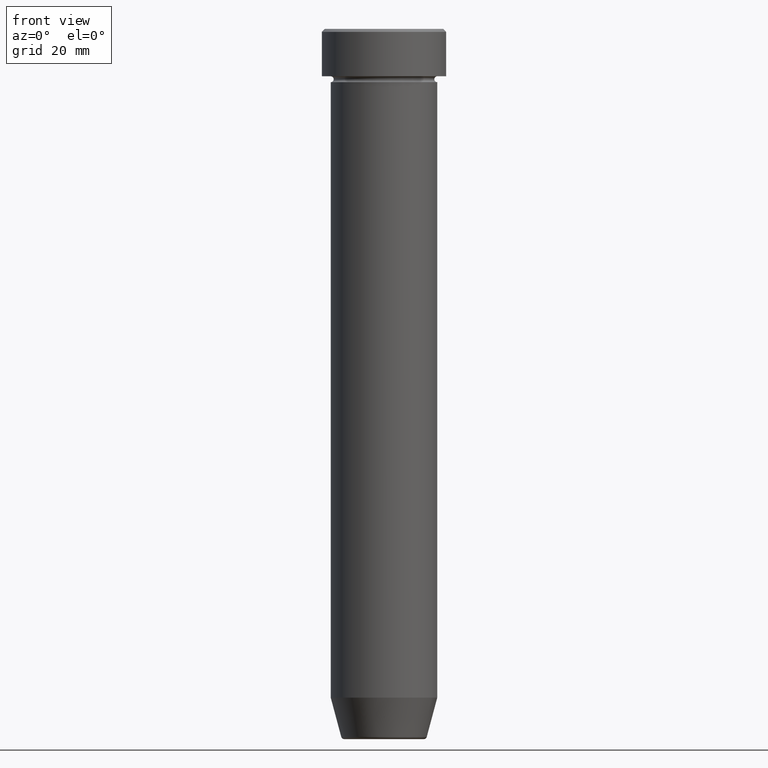
[diagram: clean part render]
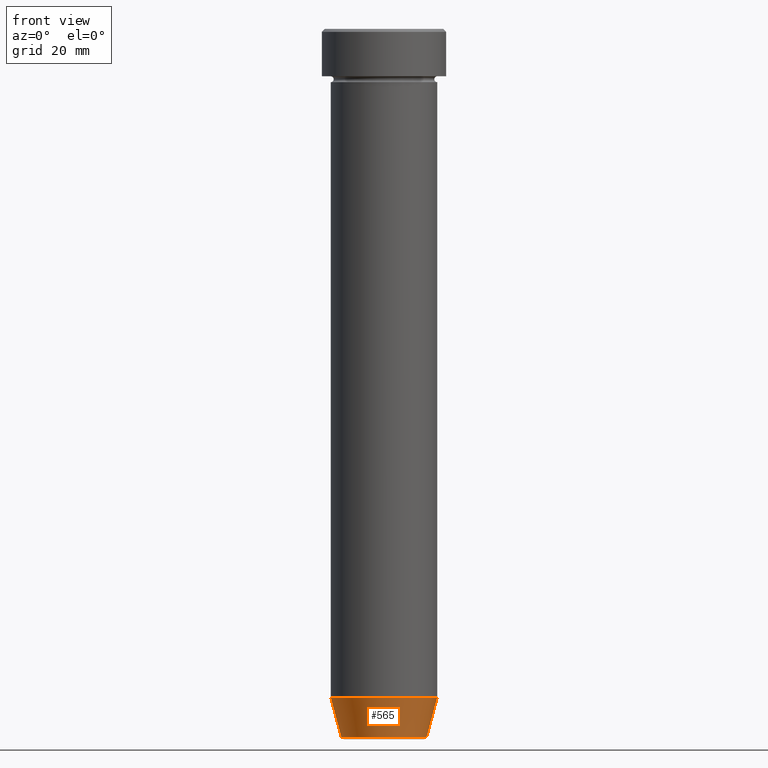
[diagram: same view with one face highlighted and labeled with its STEP entity id]
A machine part, front view. The second image highlights one B-rep face of the part: STEP entity #565.
In plain terms, the highlighted conical surface has half-angle 15 deg.
Its self-contained STEP definition (entity closure, byte-faithful):
#11 = EDGE_CURVE ( 'NONE', #596, #252, #169, .T. ) ;
#34 = FACE_OUTER_BOUND ( 'NONE', #537, .T. ) ;
#52 = DIRECTION ( 'NONE',  ( 0.2588190451025210725, 0.000000000000000000, 0.9659258262890680902 ) ) ;
#85 = CARTESIAN_POINT ( 'NONE',  ( -7.223655072137189492, 9.934123627281763137E-16, -119.6294095225512706 ) ) ;
#90 = VECTOR ( 'NONE', #52, 1000.000000000000114 ) ;
#97 = CARTESIAN_POINT ( 'NONE',  ( 0.000000000000000000, 0.000000000000000000, -112.9999999999999858 ) ) ;
#157 = VECTOR ( 'NONE', #250, 1000.000000000000114 ) ;
#163 = DIRECTION ( 'NONE',  ( -1.000000000000000000, 0.000000000000000000, 0.000000000000000000 ) ) ;
#168 = CARTESIAN_POINT ( 'NONE',  ( 0.000000000000000000, 0.000000000000000000, -119.6294095225512706 ) ) ;
#169 = LINE ( 'NONE', #579, #157 ) ;
#185 = LINE ( 'NONE', #475, #90 ) ;
#187 = ORIENTED_EDGE ( 'NONE', *, *, #339, .F. ) ;
#221 = ORIENTED_EDGE ( 'NONE', *, *, #458, .T. ) ;
#241 = ORIENTED_EDGE ( 'NONE', *, *, #305, .T. ) ;
#250 = DIRECTION ( 'NONE',  ( -0.2588190451025210725, 3.169619151431769255E-17, 0.9659258262890680902 ) ) ;
#252 = VERTEX_POINT ( 'NONE', #417 ) ;
#256 = AXIS2_PLACEMENT_3D ( 'NONE', #168, #390, #163 ) ;
#257 = AXIS2_PLACEMENT_3D ( 'NONE', #457, #554, #266 ) ;
#266 = DIRECTION ( 'NONE',  ( 1.000000000000000000, 0.000000000000000000, 0.000000000000000000 ) ) ;
#305 = EDGE_CURVE ( 'NONE', #310, #562, #185, .T. ) ;
#310 = VERTEX_POINT ( 'NONE', #328 ) ;
#327 = CONICAL_SURFACE ( 'NONE', #257, 7.124355652982136355, 0.2617993877991497964 ) ;
#328 = CARTESIAN_POINT ( 'NONE',  ( 7.223655072137189492, 0.000000000000000000, -119.6294095225512706 ) ) ;
#339 = EDGE_CURVE ( 'NONE', #252, #562, #383, .T. ) ;
#383 = CIRCLE ( 'NONE', #501, 9.000000000000000000 ) ;
#390 = DIRECTION ( 'NONE',  ( -0.000000000000000000, -0.000000000000000000, 1.000000000000000000 ) ) ;
#417 = CARTESIAN_POINT ( 'NONE',  ( -9.000000000000000000, 1.102182119232617714E-15, -112.9999999999999858 ) ) ;
#421 = CIRCLE ( 'NONE', #256, 7.223655072137189492 ) ;
#440 = CARTESIAN_POINT ( 'NONE',  ( 9.000000000000000000, 0.000000000000000000, -112.9999999999999858 ) ) ;
#457 = CARTESIAN_POINT ( 'NONE',  ( 0.000000000000000000, 0.000000000000000000, -120.0000000000000000 ) ) ;
#458 = EDGE_CURVE ( 'NONE', #596, #310, #421, .T. ) ;
#469 = DIRECTION ( 'NONE',  ( 1.000000000000000000, 0.000000000000000000, 0.000000000000000000 ) ) ;
#475 = CARTESIAN_POINT ( 'NONE',  ( 7.124355652982136355, 0.000000000000000000, -120.0000000000000000 ) ) ;
#501 = AXIS2_PLACEMENT_3D ( 'NONE', #97, #597, #469 ) ;
#532 = ORIENTED_EDGE ( 'NONE', *, *, #11, .F. ) ;
#537 = EDGE_LOOP ( 'NONE', ( #532, #221, #241, #187 ) ) ;
#554 = DIRECTION ( 'NONE',  ( -0.000000000000000000, -0.000000000000000000, 1.000000000000000000 ) ) ;
#562 = VERTEX_POINT ( 'NONE', #440 ) ;
#565 = ADVANCED_FACE ( 'NONE', ( #34 ), #327, .T. ) ;
#579 = CARTESIAN_POINT ( 'NONE',  ( -7.124355652982136355, 8.724819346411924116E-16, -120.0000000000000000 ) ) ;
#596 = VERTEX_POINT ( 'NONE', #85 ) ;
#597 = DIRECTION ( 'NONE',  ( -0.000000000000000000, -0.000000000000000000, 1.000000000000000000 ) ) ;